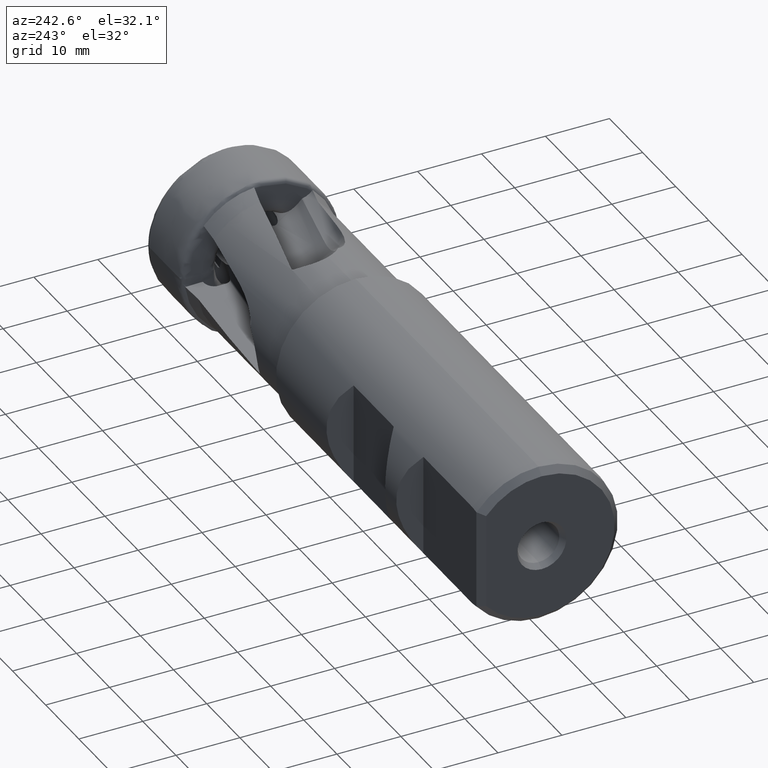
[diagram: clean part render]
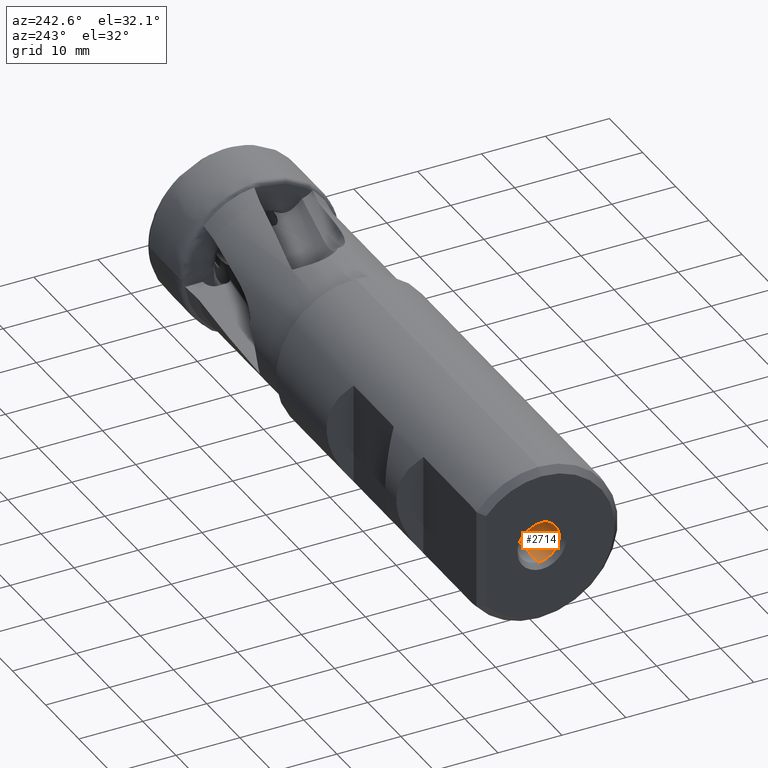
[diagram: same view with one face highlighted and labeled with its STEP entity id]
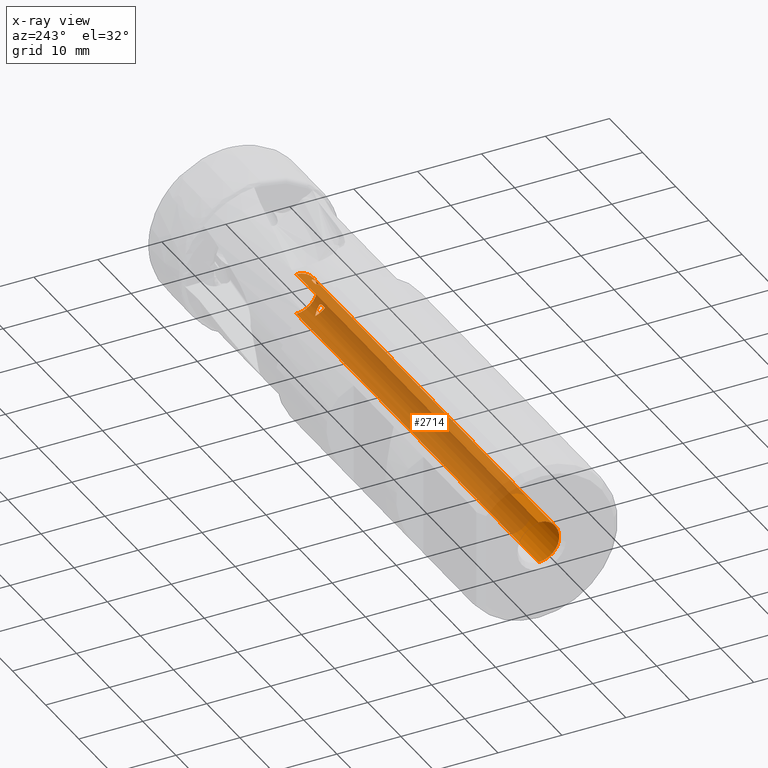
[diagram: x-ray of the same camera — body ghosted, the highlighted face saturated]
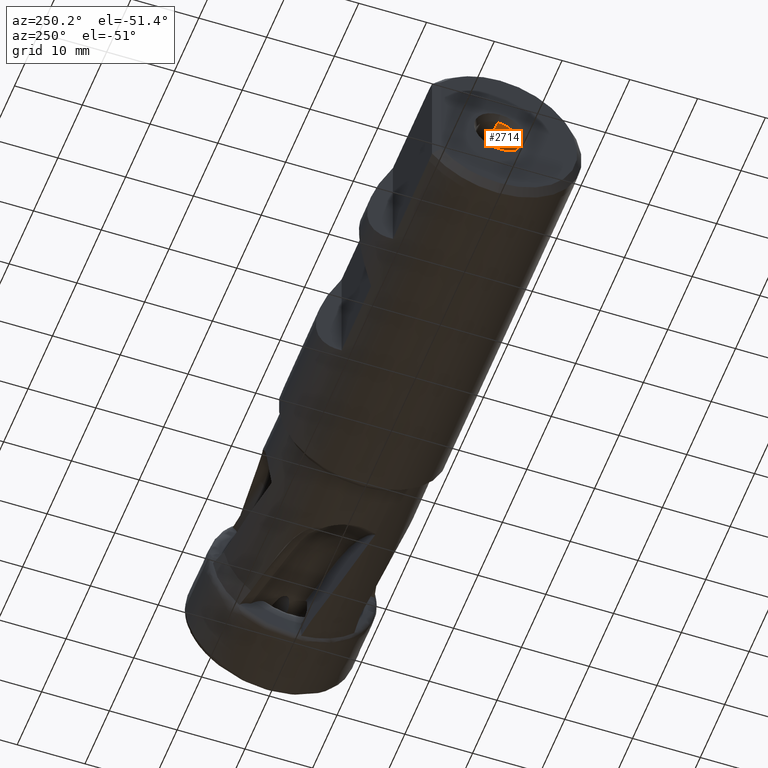
[diagram: same view with one face highlighted and labeled with its STEP entity id]
A machine part, auxiliary view. The second image highlights one B-rep face of the part: STEP entity #2714.
The next image is the same camera in x-ray: the body ghosted, the highlighted face saturated — about 88% of this face is hidden behind the body in this view.
A second angle (auxiliary view) of the same face is appended — the face is thin or edge-on in the first view.
In plain terms, the highlighted cylindrical surface (edge-blend (fillet) strip) has radius 3.25 mm, axis along (1, -0, -0).
Its self-contained STEP definition (entity closure, byte-faithful):
#146 = LINE ( 'NONE', #1294, #148 ) ;
#148 = VECTOR ( 'NONE', #1293, 1000.000000000000000 ) ;
#151 = CIRCLE ( 'NONE', #5193, 3.249999999999988500 ) ;
#161 = CIRCLE ( 'NONE', #5303, 3.249999999999988500 ) ;
#165 = LINE ( 'NONE', #1520, #168 ) ;
#168 = VECTOR ( 'NONE', #1521, 1000.000000000000000 ) ;
#281 = EDGE_LOOP ( 'NONE', ( #1897, #1923 ) ) ;
#331 = EDGE_LOOP ( 'NONE', ( #5375, #5347, #5355, #5320 ) ) ;
#810 = CARTESIAN_POINT ( 'NONE',  ( -23.34136784946953800, -1.966052200996774700, 2.660599961497174300 ) ) ;
#811 = CARTESIAN_POINT ( 'NONE',  ( -23.12921440114872600, -2.426448220665560200, 2.248666814935454700 ) ) ;
#817 = CARTESIAN_POINT ( 'NONE',  ( -22.97951257046425200, -2.754366216356125600, 1.725099054024429800 ) ) ;
#818 = CARTESIAN_POINT ( 'NONE',  ( -23.59928945195758100, -1.409383084661827200, 2.928504621930628500 ) ) ;
#1107 = CARTESIAN_POINT ( 'NONE',  ( -22.97951257046424400, -1.688897720775878200, -2.776711092058005400 ) ) ;
#1108 = CARTESIAN_POINT ( 'NONE',  ( -22.77325060769318600, -1.849403192093989100, -2.679085766377993700 ) ) ;
#1293 = DIRECTION ( 'NONE',  ( 1.000000000000000000, -0.0000000000000000000, -0.0000000000000000000 ) ) ;
#1294 = CARTESIAN_POINT ( 'NONE',  ( 0.0000000000000000000, 0.0000000000000000000, -3.249999999999988500 ) ) ;
#1412 = CARTESIAN_POINT ( 'NONE',  ( -22.97951257046424400, -1.688897720775878200, -2.776711092058005400 ) ) ;
#1496 = CARTESIAN_POINT ( 'NONE',  ( -20.57279701183959700, 0.0000000000000000000, 0.0000000000000000000 ) ) ;
#1497 = DIRECTION ( 'NONE',  ( 1.000000000000000000, -0.0000000000000000000, -0.0000000000000000000 ) ) ;
#1498 = DIRECTION ( 'NONE',  ( 0.0000000000000000000, 0.0000000000000000000, -1.000000000000000000 ) ) ;
#1512 = CARTESIAN_POINT ( 'NONE',  ( -93.62000000000000500, 0.0000000000000000000, 0.0000000000000000000 ) ) ;
#1513 = DIRECTION ( 'NONE',  ( 1.000000000000000000, -0.0000000000000000000, -0.0000000000000000000 ) ) ;
#1514 = DIRECTION ( 'NONE',  ( 0.0000000000000000000, 0.0000000000000000000, -1.000000000000000000 ) ) ;
#1520 = CARTESIAN_POINT ( 'NONE',  ( 0.0000000000000000000, 3.980102097228883900E-016, 3.249999999999988500 ) ) ;
#1521 = DIRECTION ( 'NONE',  ( 1.000000000000000000, -0.0000000000000000000, -0.0000000000000000000 ) ) ;
#1897 = ORIENTED_EDGE ( 'NONE', *, *, #5695, .F. ) ;
#1923 = ORIENTED_EDGE ( 'NONE', *, *, #5694, .T. ) ;
#2136 =( BOUNDED_CURVE ( )  B_SPLINE_CURVE ( 3, ( #817, #811, #810, #818 ),
 .UNSPECIFIED., .F., .F. ) 
 B_SPLINE_CURVE_WITH_KNOTS ( ( 4, 4 ),
 ( 0.5464539297876547200, 1.109159792481774000 ),
 .UNSPECIFIED. ) 
 CURVE ( )  GEOMETRIC_REPRESENTATION_ITEM ( )  RATIONAL_B_SPLINE_CURVE ( ( 1.000000000000000000, 0.9737871124239925200, 0.9737871124239925200, 1.000000000000000000 ) ) 
 REPRESENTATION_ITEM ( '' )  );
#2207 = B_SPLINE_CURVE_WITH_KNOTS ( 'NONE', 3,
 ( #1107, #1108, #2256, #2257, #2258, #2259, #2260, #2261, #2262, #2263, #2264, #2265, #2266, #2267, #2268, #2269, #2270, #2271, #2272, #2273, #2274, #2275 ),
 .UNSPECIFIED., .F., .F.,
 ( 4, 2, 2, 2, 2, 2, 2, 2, 2, 2, 4 ),
 ( 9.288797314404930200E-017, 0.0008244003619786485300, 0.001236600542967926300, 0.001442700633462566600, 0.001648800723957207100, 0.001854900814451847100, 0.002061000904946487900, 0.002267100995441128200, 0.002473201085935768400, 0.002885401266925049400, 0.003297601447914330000 ),
 .UNSPECIFIED. ) ;
#2209 =( BOUNDED_CURVE ( )  B_SPLINE_CURVE ( 3, ( #2276, #2278, #2279, #2280 ),
 .UNSPECIFIED., .F., .F. ) 
 B_SPLINE_CURVE_WITH_KNOTS ( ( 4, 4 ),
 ( 0.5464539297876449500, 1.109159792481783800 ),
 .UNSPECIFIED. ) 
 CURVE ( )  GEOMETRIC_REPRESENTATION_ITEM ( )  RATIONAL_B_SPLINE_CURVE ( ( 1.000000000000000000, 0.9737871124239907400, 0.9737871124239907400, 1.000000000000000000 ) ) 
 REPRESENTATION_ITEM ( '' )  );
#2221 = B_SPLINE_CURVE_WITH_KNOTS ( 'NONE', 3,
 ( #2295, #2305, #2313, #2314, #2315, #2316, #2317, #2318, #2319, #2320, #2321, #2322, #2323, #2324, #2325, #2326, #2327, #2328, #2329, #2330, #2331, #2332 ),
 .UNSPECIFIED., .F., .F.,
 ( 4, 2, 2, 2, 2, 2, 2, 2, 2, 2, 4 ),
 ( 6.406891815124888100E-018, 0.0008244003619785163700, 0.001236600542967771700, 0.001442700633462401300, 0.001648800723957030800, 0.001854900814451660200, 0.002061000904946289700, 0.002267100995440918700, 0.002473201085935547700, 0.002885401266924806200, 0.003297601447914064600 ),
 .UNSPECIFIED. ) ;
#2256 = CARTESIAN_POINT ( 'NONE',  ( -22.58949455256388500, -2.015952072040028100, -2.559583320573404700 ) ) ;
#2257 = CARTESIAN_POINT ( 'NONE',  ( -22.35991989357382800, -2.271529227203529000, -2.327211282391457900 ) ) ;
#2258 = CARTESIAN_POINT ( 'NONE',  ( -22.29038222270207800, -2.358790333260912600, -2.239466640243081000 ) ) ;
#2259 = CARTESIAN_POINT ( 'NONE',  ( -22.21205099752993200, -2.486209300066456700, -2.094138004890006700 ) ) ;
#2260 = CARTESIAN_POINT ( 'NONE',  ( -22.19010239660712400, -2.528281491203421700, -2.043281506664568400 ) ) ;
#2261 = CARTESIAN_POINT ( 'NONE',  ( -22.15959203323461000, -2.612254796051785500, -1.934769106313120300 ) ) ;
#2262 = CARTESIAN_POINT ( 'NONE',  ( -22.15114479068737900, -2.653770656995784600, -1.877501324876335000 ) ) ;
#2263 = CARTESIAN_POINT ( 'NONE',  ( -22.16011310189921000, -2.732994778467936900, -1.760184497634050400 ) ) ;
#2264 = CARTESIAN_POINT ( 'NONE',  ( -22.17844331404832700, -2.769900842027262400, -1.701112428907574500 ) ) ;
#2265 = CARTESIAN_POINT ( 'NONE',  ( -22.25013202841395500, -2.831081440794448700, -1.597220099434133200 ) ) ;
#2266 = CARTESIAN_POINT ( 'NONE',  ( -22.30330094079014800, -2.854777714981011600, -1.553726790675637100 ) ) ;
#2267 = CARTESIAN_POINT ( 'NONE',  ( -22.42331810308452200, -2.888832779921370400, -1.489452218658658300 ) ) ;
#2268 = CARTESIAN_POINT ( 'NONE',  ( -22.49044211375202100, -2.900017891533037200, -1.467212347804473600 ) ) ;
#2269 = CARTESIAN_POINT ( 'NONE',  ( -22.62577110263442400, -2.915890338445504600, -1.435409132937989000 ) ) ;
#2270 = CARTESIAN_POINT ( 'NONE',  ( -22.69564168991548000, -2.920747858763051300, -1.425406222766870500 ) ) ;
#2271 = CARTESIAN_POINT ( 'NONE',  ( -22.90492450617452400, -2.930097742508741100, -1.406140475497127800 ) ) ;
#2272 = CARTESIAN_POINT ( 'NONE',  ( -23.04402788989244800, -2.929693583045217800, -1.406927365389292200 ) ) ;
#2273 = CARTESIAN_POINT ( 'NONE',  ( -23.32189664424386400, -2.923599456790785000, -1.419547575204932900 ) ) ;
#2274 = CARTESIAN_POINT ( 'NONE',  ( -23.46064539015355900, -2.917611082275922900, -1.431905261108745500 ) ) ;
#2275 = CARTESIAN_POINT ( 'NONE',  ( -23.59928945195759600, -2.909805475251824500, -1.447595280523675800 ) ) ;
#2276 = CARTESIAN_POINT ( 'NONE',  ( -22.97951257046424400, -1.688897720775878200, -2.776711092058005400 ) ) ;
#2278 = CARTESIAN_POINT ( 'NONE',  ( -23.12921440114873000, -2.216712940310834300, -2.455674480142176400 ) ) ;
#2279 = CARTESIAN_POINT ( 'NONE',  ( -23.34136784946954500, -2.634637193260678700, -2.000709942008222200 ) ) ;
#2280 = CARTESIAN_POINT ( 'NONE',  ( -23.59928945195759600, -2.909805475251824500, -1.447595280523675800 ) ) ;
#2295 = CARTESIAN_POINT ( 'NONE',  ( -22.97951257046425200, -2.754366216356125600, 1.725099054024429800 ) ) ;
#2305 = CARTESIAN_POINT ( 'NONE',  ( -22.77325060769321000, -2.654648302768057600, 1.884312898418924100 ) ) ;
#2313 = CARTESIAN_POINT ( 'NONE',  ( -22.58949455256388500, -2.532976037546571300, 2.049283271032808600 ) ) ;
#2314 = CARTESIAN_POINT ( 'NONE',  ( -22.35991989357383900, -2.297278505642518900, 2.301796874279491000 ) ) ;
#2315 = CARTESIAN_POINT ( 'NONE',  ( -22.29038222270209200, -2.208399168203105200, 2.387901962586947300 ) ) ;
#2316 = CARTESIAN_POINT ( 'NONE',  ( -22.21205099752993600, -2.061415120763189900, 2.513407720038777000 ) ) ;
#2317 = CARTESIAN_POINT ( 'NONE',  ( -22.19010239660712700, -2.010012271570550600, 2.554810615755112900 ) ) ;
#2318 = CARTESIAN_POINT ( 'NONE',  ( -22.15959203323460600, -1.900409991140448200, 2.637356342971647600 ) ) ;
#2319 = CARTESIAN_POINT ( 'NONE',  ( -22.15114479068737600, -1.842603690143884700, 2.678119035052843000 ) ) ;
#2320 = CARTESIAN_POINT ( 'NONE',  ( -22.16011310189919900, -1.724259902009217500, 2.755800739380008600 ) ) ;
#2321 = CARTESIAN_POINT ( 'NONE',  ( -22.17844331404830500, -1.664709808684063000, 2.791930411618138000 ) ) ;
#2322 = CARTESIAN_POINT ( 'NONE',  ( -22.25013202841394000, -1.560025550623839400, 2.851745860319243600 ) ) ;
#2323 = CARTESIAN_POINT ( 'NONE',  ( -22.30330094079011300, -1.516225793396968500, 2.874870794566803100 ) ) ;
#2324 = CARTESIAN_POINT ( 'NONE',  ( -22.42331810308448300, -1.451510960911272900, 2.908081613773906900 ) ) ;
#2325 = CARTESIAN_POINT ( 'NONE',  ( -22.49044211375197800, -1.429126586813357100, 2.918974656214889500 ) ) ;
#2326 = CARTESIAN_POINT ( 'NONE',  ( -22.62577110263438800, -1.397118332694629700, 2.934429452075856500 ) ) ;
#2327 = CARTESIAN_POINT ( 'NONE',  ( -22.69564168991544400, -1.387052696520657300, 2.939155622189176600 ) ) ;
#2328 = CARTESIAN_POINT ( 'NONE',  ( -22.90492450617449500, -1.367666213597347000, 2.948252524067504200 ) ) ;
#2329 = CARTESIAN_POINT ( 'NONE',  ( -23.04402788989241600, -1.368458326358667200, 2.947858699299749800 ) ) ;
#2330 = CARTESIAN_POINT ( 'NONE',  ( -23.32189664424386100, -1.381157224618347000, 2.941930288586410900 ) ) ;
#2331 = CARTESIAN_POINT ( 'NONE',  ( -23.46064539015345900, -1.393592237209749800, 2.936104184220803800 ) ) ;
#2332 = CARTESIAN_POINT ( 'NONE',  ( -23.59928945195758100, -1.409383084661827200, 2.928504621930628500 ) ) ;
#2351 = CARTESIAN_POINT ( 'NONE',  ( -23.59928945195758100, -1.409383084661827200, 2.928504621930628500 ) ) ;
#2371 = CARTESIAN_POINT ( 'NONE',  ( -93.62000000000000500, 3.980102097228883900E-016, 3.249999999999988500 ) ) ;
#2394 = CARTESIAN_POINT ( 'NONE',  ( -20.57279701183959700, 0.0000000000000000000, 3.249999999999988000 ) ) ;
#2398 = CARTESIAN_POINT ( 'NONE',  ( -20.57279701183959700, 3.980102097228883900E-016, -3.249999999999988000 ) ) ;
#2406 = CARTESIAN_POINT ( 'NONE',  ( -93.62000000000000500, 0.0000000000000000000, -3.249999999999988500 ) ) ;
#2422 = CARTESIAN_POINT ( 'NONE',  ( -22.97951257046425200, -2.754366216356125600, 1.725099054024429800 ) ) ;
#2447 = CARTESIAN_POINT ( 'NONE',  ( -23.59928945195759600, -2.909805475251824500, -1.447595280523675800 ) ) ;
#2714 = ADVANCED_FACE ( 'NONE', ( #3579, #3591, #3583 ), #3576, .F. ) ;
#3397 = EDGE_CURVE ( 'NONE', #7707, #7698, #146, .T. ) ;
#3561 = EDGE_LOOP ( 'NONE', ( #5362, #5363 ) ) ;
#3576 = CYLINDRICAL_SURFACE ( 'NONE', #5295, 3.249999999999988500 ) ;
#3579 = FACE_BOUND ( 'NONE', #281, .T. ) ;
#3583 = FACE_OUTER_BOUND ( 'NONE', #331, .T. ) ;
#3591 = FACE_BOUND ( 'NONE', #3561, .T. ) ;
#3891 = CARTESIAN_POINT ( 'NONE',  ( 0.0000000000000000000, 0.0000000000000000000, 0.0000000000000000000 ) ) ;
#3953 = DIRECTION ( 'NONE',  ( 1.000000000000000000, -0.0000000000000000000, -0.0000000000000000000 ) ) ;
#3962 = DIRECTION ( 'NONE',  ( 0.0000000000000000000, 0.0000000000000000000, -1.000000000000000000 ) ) ;
#4637 = VERTEX_POINT ( 'NONE', #1412 ) ;
#5193 = AXIS2_PLACEMENT_3D ( 'NONE', #1496, #1497, #1498 ) ;
#5295 = AXIS2_PLACEMENT_3D ( 'NONE', #3891, #3953, #3962 ) ;
#5303 = AXIS2_PLACEMENT_3D ( 'NONE', #1512, #1513, #1514 ) ;
#5320 = ORIENTED_EDGE ( 'NONE', *, *, #3397, .F. ) ;
#5347 = ORIENTED_EDGE ( 'NONE', *, *, #5560, .T. ) ;
#5355 = ORIENTED_EDGE ( 'NONE', *, *, #5551, .T. ) ;
#5362 = ORIENTED_EDGE ( 'NONE', *, *, #5642, .F. ) ;
#5363 = ORIENTED_EDGE ( 'NONE', *, *, #5704, .T. ) ;
#5375 = ORIENTED_EDGE ( 'NONE', *, *, #5556, .F. ) ;
#5551 = EDGE_CURVE ( 'NONE', #7694, #7698, #151, .T. ) ;
#5556 = EDGE_CURVE ( 'NONE', #7676, #7707, #161, .T. ) ;
#5560 = EDGE_CURVE ( 'NONE', #7676, #7694, #165, .T. ) ;
#5642 = EDGE_CURVE ( 'NONE', #7725, #7579, #2136, .T. ) ;
#5694 = EDGE_CURVE ( 'NONE', #4637, #7756, #2207, .T. ) ;
#5695 = EDGE_CURVE ( 'NONE', #4637, #7756, #2209, .T. ) ;
#5704 = EDGE_CURVE ( 'NONE', #7725, #7579, #2221, .T. ) ;
#7579 = VERTEX_POINT ( 'NONE', #2351 ) ;
#7676 = VERTEX_POINT ( 'NONE', #2371 ) ;
#7694 = VERTEX_POINT ( 'NONE', #2394 ) ;
#7698 = VERTEX_POINT ( 'NONE', #2398 ) ;
#7707 = VERTEX_POINT ( 'NONE', #2406 ) ;
#7725 = VERTEX_POINT ( 'NONE', #2422 ) ;
#7756 = VERTEX_POINT ( 'NONE', #2447 ) ;